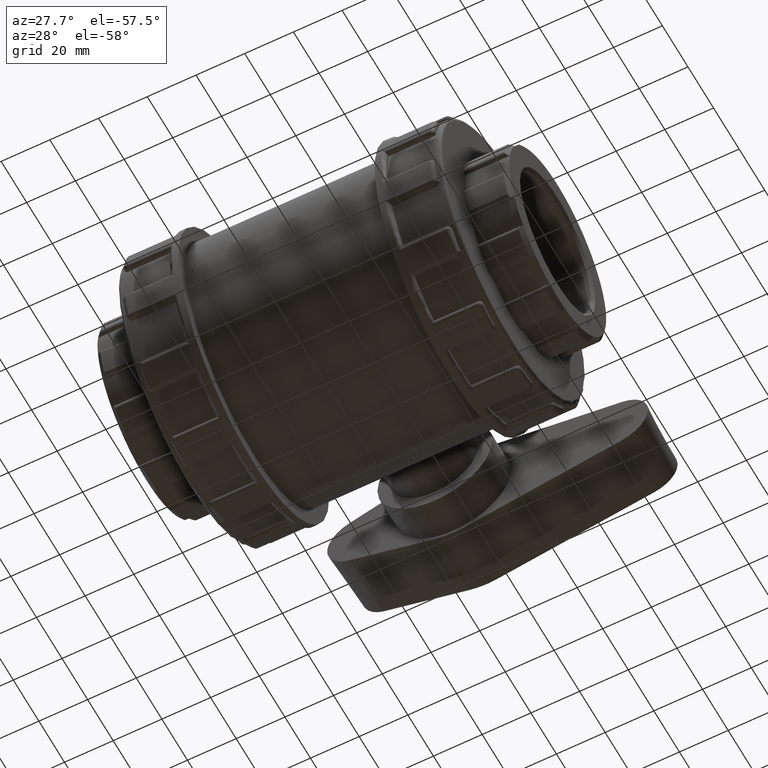
[diagram: clean part render]
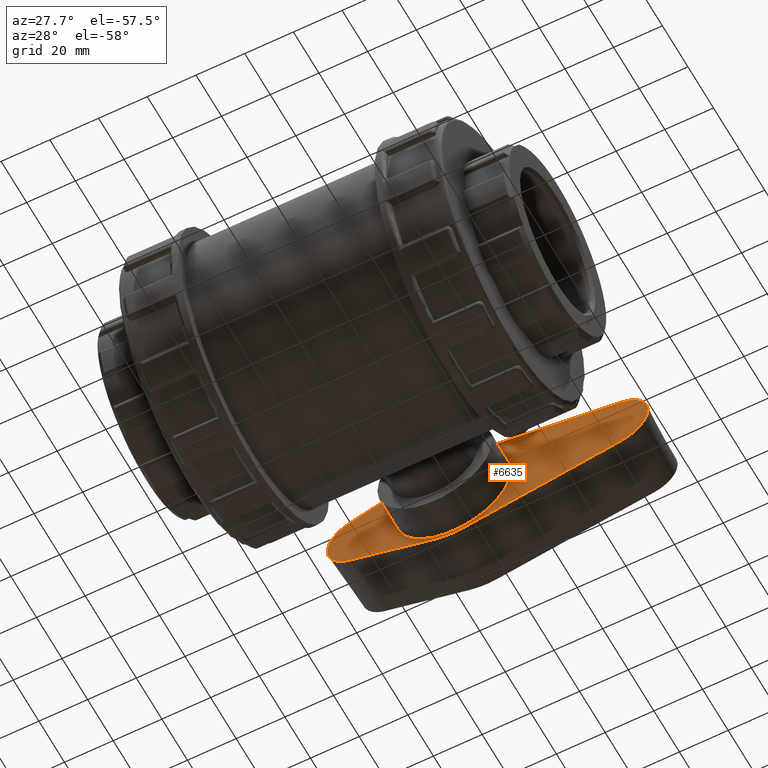
[diagram: same view with one face highlighted and labeled with its STEP entity id]
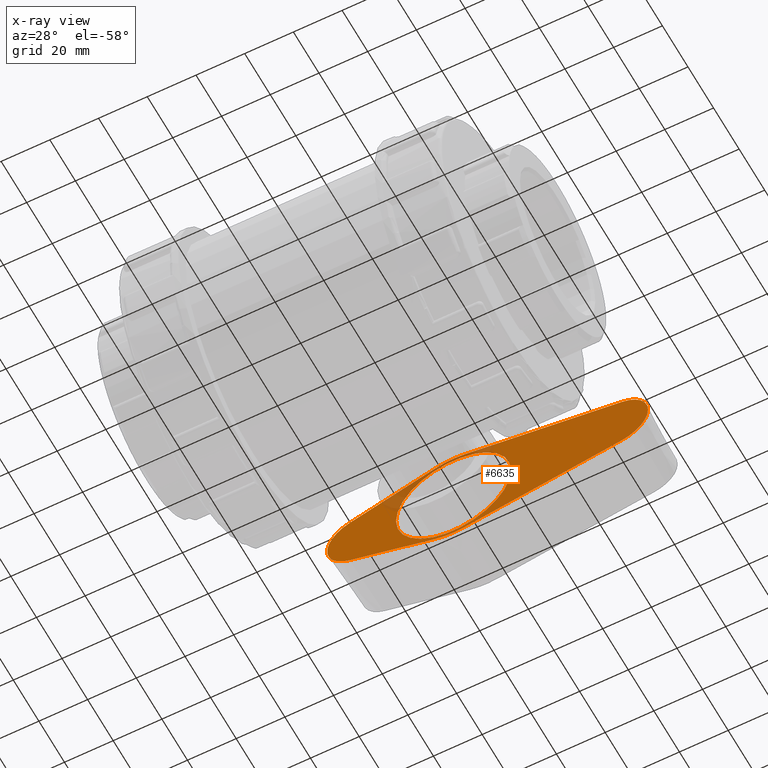
[diagram: x-ray of the same camera — body ghosted, the highlighted face saturated]
A machine part, auxiliary view. The second image highlights one B-rep face of the part: STEP entity #6635.
The next image is the same camera in x-ray: the body ghosted, the highlighted face saturated — about 6% of this face is hidden behind the body in this view.
In plain terms, the highlighted planar face has unit normal (-0, 1, 0).
Its self-contained STEP definition (entity closure, byte-faithful):
#201=FACE_BOUND('',#874,.T.);
#232=PLANE('',#7093);
#438=FACE_OUTER_BOUND('',#873,.T.);
#873=EDGE_LOOP('',(#4401,#4402,#4403,#4404,#4405,#4406,#4407,#4408));
#874=EDGE_LOOP('',(#4409));
#1325=LINE('',#10368,#1721);
#1328=LINE('',#10376,#1724);
#1337=LINE('',#10407,#1733);
#1338=LINE('',#10410,#1734);
#1721=VECTOR('',#8073,65.6479245673464);
#1724=VECTOR('',#8082,65.6479245673464);
#1733=VECTOR('',#8115,36.8571566998867);
#1734=VECTOR('',#8118,36.8571566998867);
#2122=CIRCLE('',#7078,24.9888061510006);
#2123=CIRCLE('',#7081,13.1888061510006);
#2128=CIRCLE('',#7094,24.9888061510006);
#2129=CIRCLE('',#7095,13.1888061510006);
#2130=CIRCLE('',#7096,23.6);
#2641=VERTEX_POINT('',#10360);
#2642=VERTEX_POINT('',#10362);
#2643=VERTEX_POINT('',#10366);
#2644=VERTEX_POINT('',#10370);
#2645=VERTEX_POINT('',#10374);
#2654=VERTEX_POINT('',#10404);
#2655=VERTEX_POINT('',#10406);
#2656=VERTEX_POINT('',#10408);
#2657=VERTEX_POINT('',#10411);
#3294=EDGE_CURVE('',#2641,#2642,#2122,.T.);
#3297=EDGE_CURVE('',#2643,#2641,#1325,.T.);
#3299=EDGE_CURVE('',#2644,#2643,#2123,.T.);
#3301=EDGE_CURVE('',#2645,#2644,#1328,.T.);
#3314=EDGE_CURVE('',#2654,#2645,#2128,.T.);
#3315=EDGE_CURVE('',#2655,#2654,#1337,.T.);
#3316=EDGE_CURVE('',#2656,#2655,#2129,.T.);
#3317=EDGE_CURVE('',#2642,#2656,#1338,.T.);
#3318=EDGE_CURVE('',#2657,#2657,#2130,.T.);
#4401=ORIENTED_EDGE('',*,*,#3297,.F.);
#4402=ORIENTED_EDGE('',*,*,#3299,.F.);
#4403=ORIENTED_EDGE('',*,*,#3301,.F.);
#4404=ORIENTED_EDGE('',*,*,#3314,.F.);
#4405=ORIENTED_EDGE('',*,*,#3315,.F.);
#4406=ORIENTED_EDGE('',*,*,#3316,.F.);
#4407=ORIENTED_EDGE('',*,*,#3317,.F.);
#4408=ORIENTED_EDGE('',*,*,#3294,.F.);
#4409=ORIENTED_EDGE('',*,*,#3318,.F.);
#6635=ADVANCED_FACE('',(#438,#201),#232,.F.);
#7078=AXIS2_PLACEMENT_3D('',#10363,#8067,#8068);
#7081=AXIS2_PLACEMENT_3D('',#10372,#8077,#8078);
#7093=AXIS2_PLACEMENT_3D('',#10403,#8111,#8112);
#7094=AXIS2_PLACEMENT_3D('',#10405,#8113,#8114);
#7095=AXIS2_PLACEMENT_3D('',#10409,#8116,#8117);
#7096=AXIS2_PLACEMENT_3D('',#10412,#8119,#8120);
#8067=DIRECTION('center_axis',(-2.97139982259774E-16,1.,0.));
#8068=DIRECTION('ref_axis',(1.,2.97139982259774E-16,0.));
#8073=DIRECTION('',(-0.984226755132629,-2.92453120559705E-16,-0.176911544227886));
#8077=DIRECTION('center_axis',(-2.97139982259774E-16,1.,0.));
#8078=DIRECTION('ref_axis',(1.,2.97139982259774E-16,0.));
#8082=DIRECTION('',(0.984226755132629,2.92453120559705E-16,-0.176911544227886));
#8111=DIRECTION('center_axis',(-4.48378053612687E-16,1.,0.));
#8112=DIRECTION('ref_axis',(0.,0.,1.));
#8113=DIRECTION('center_axis',(-2.97139982259774E-16,1.,0.));
#8114=DIRECTION('ref_axis',(1.,2.97139982259774E-16,0.));
#8115=DIRECTION('',(0.952381310074591,2.82990565580104E-16,0.304909560723514));
#8116=DIRECTION('center_axis',(-2.97139982259774E-16,1.,0.));
#8117=DIRECTION('ref_axis',(1.,2.97139982259774E-16,0.));
#8118=DIRECTION('',(-0.952381310074591,-2.82990565580104E-16,0.304909560723514));
#8119=DIRECTION('center_axis',(4.48378053612687E-16,-1.,0.));
#8120=DIRECTION('ref_axis',(-1.,0.,0.));
#10360=CARTESIAN_POINT('',(4.42080828458481,79.5,-24.5946515926376));
#10362=CARTESIAN_POINT('',(-7.61932590650664,79.5,-23.7988719392899));
#10363=CARTESIAN_POINT('Origin',(-4.44089209850063E-15,79.5,0.));
#10366=CARTESIAN_POINT('',(69.0332520626957,79.5000000000001,-12.9807758820726));
#10368=CARTESIAN_POINT('',(69.0332520626957,79.5,-12.9807758820726));
#10370=CARTESIAN_POINT('',(69.0332520626957,79.5,12.9807758820726));
#10372=CARTESIAN_POINT('Origin',(66.7,79.5,0.));
#10374=CARTESIAN_POINT('',(4.42080828458482,79.5,24.5946515926376));
#10376=CARTESIAN_POINT('',(4.42080828458482,79.5,24.5946515926376));
#10403=CARTESIAN_POINT('Origin',(66.6999982466264,79.5000000000001,-6.50707604466026E-16));
#10404=CARTESIAN_POINT('',(-7.61932590650664,79.5,23.7988719392899));
#10405=CARTESIAN_POINT('Origin',(-4.44089209850063E-15,79.5,0.));
#10406=CARTESIAN_POINT('',(-42.7213930899692,79.5,12.5607724804098));
#10407=CARTESIAN_POINT('',(-42.7213930899692,79.5,12.5607724804098));
#10408=CARTESIAN_POINT('',(-42.7213930899692,79.5,-12.5607724804098));
#10409=CARTESIAN_POINT('Origin',(-38.7,79.5,0.));
#10410=CARTESIAN_POINT('',(-7.61932590650664,79.5,-23.7988719392899));
#10411=CARTESIAN_POINT('',(23.6,79.5,2.89016644598775E-15));
#10412=CARTESIAN_POINT('Origin',(-4.33824374099272E-15,79.5,0.));